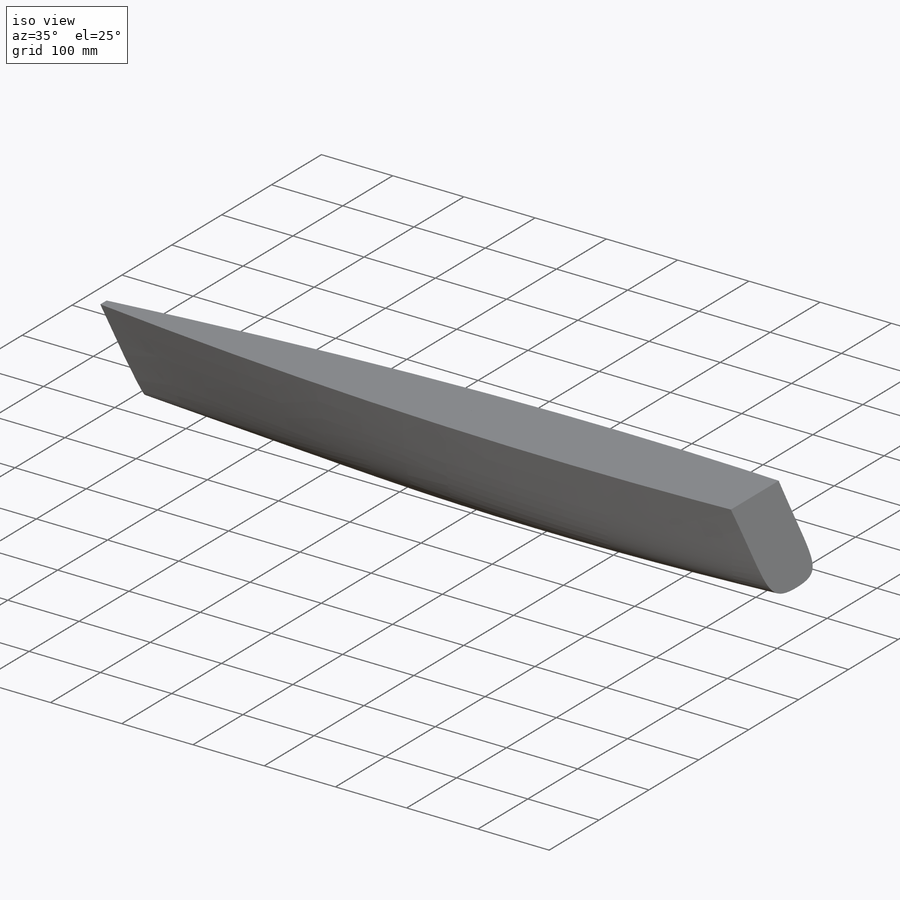
[diagram: iso view]
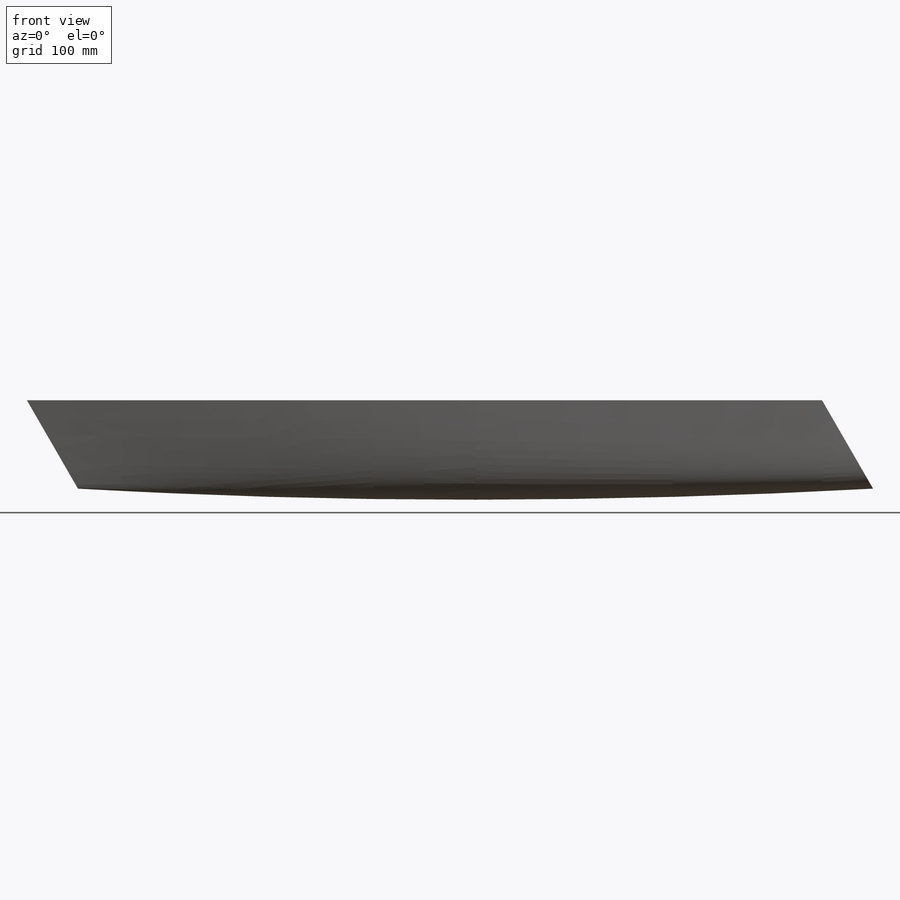
[diagram: front view]
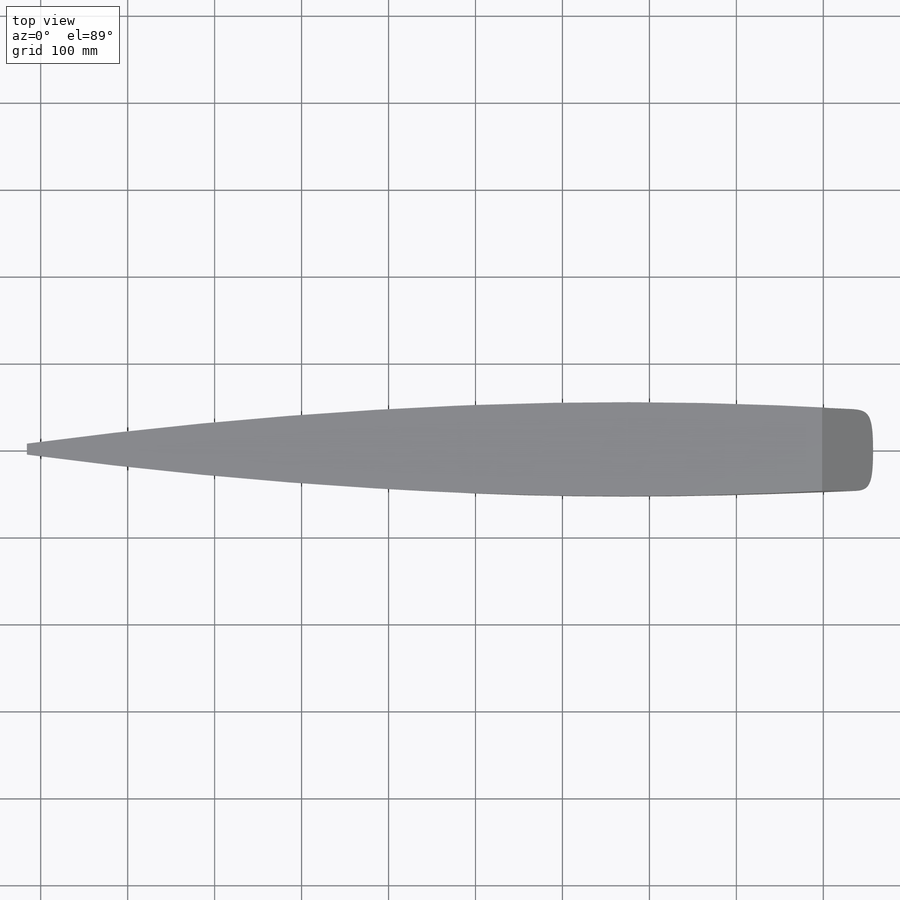
[diagram: top view]
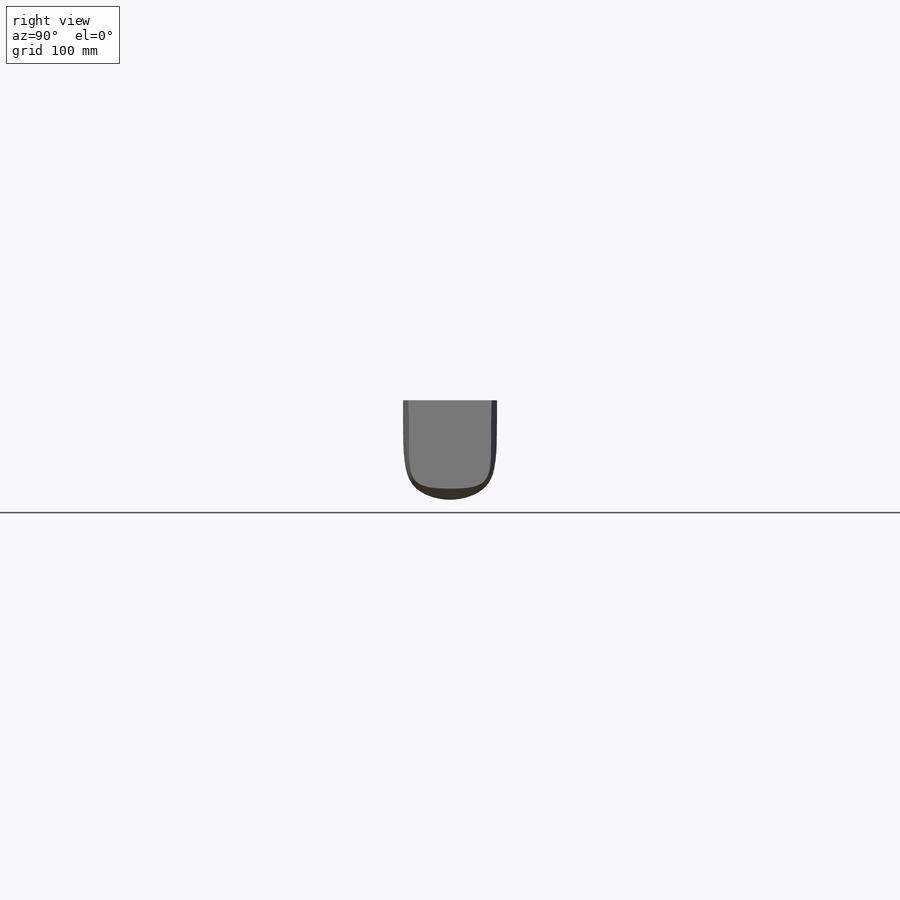
[diagram: right view]
SOLIDWORKS PART (.sldprt)
format: sldprt  version: not decoded by parser v0  size: 317,440 bytes
history: native  units: mm
features: sketch x10, plane x3, material x1, mirror x1, cut_extrude x1 (+11 scaffold rows collapsed)
feature tree (27):
  scaffold x11  (default folders/planes/origin — collapsed)
  material  "Material <not specified>"
  sketch  "Sketch1"  dims[c1.D1=914.4mm c1.D2=12.7mm c1.D3=~49.242289mm c2.D3=120.0deg c2.D4=101.6mm c2.D5=101.6mm]
  sketch  "3DSketch1"  dims[D1=6.35mm D2=44.45mm]
  plane  "Plane1"
  plane  "Plane2"
  sketch  "Sketch2"  dims[D2=203.2mm D3=152.4mm D1=50.8mm D4=114.3mm]
  sketch  "Sketch3"  dims[D1=254.0mm D2=177.8mm]
  sketch  "Sketch4"  dims[D1=12.7mm D2=203.2mm]
  sketch  "Sketch5"
  sketch  "Sketch6"
  mirror  "Mirror1"
  sketch  "Sketch15"  dims[c1.D1=~131.759494mm c2.D1=30.0deg]
  cut_extrude  "Cut-Extrude1"  [1 undecoded]
  sketch  "Sketch16"  dims[D1=25.4mm]
  plane  "Plane5"  Offset=100.33mm
  sketch  "Sketch14"
decode coverage: 7 of 12 modeling features carry decoded parameters
note: ~ marks probable driven/reference dimensions
note: 1 parameter value undecoded
note: suppression state not decoded; provenance and decode notes live in map.json
